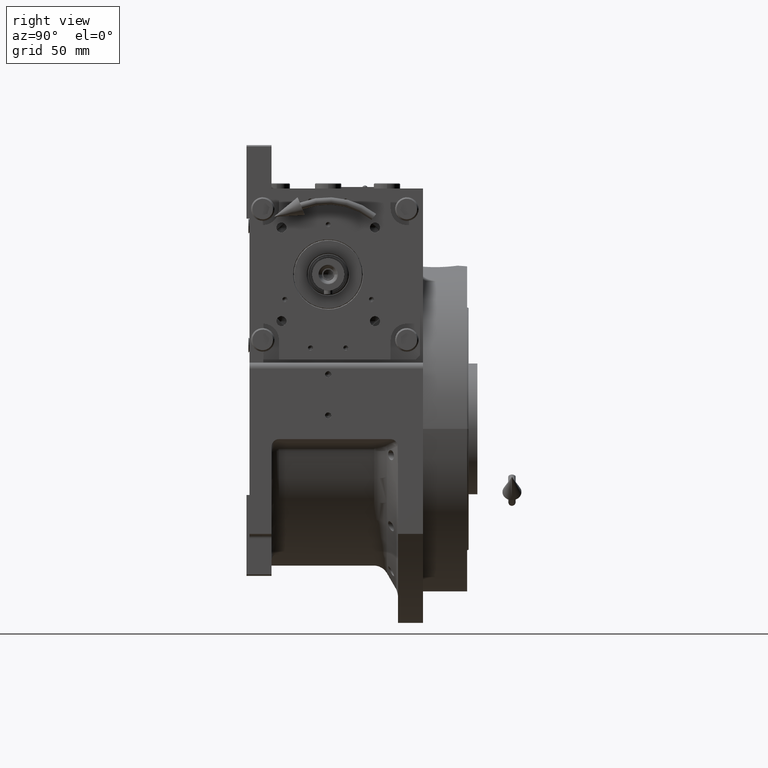
[diagram: clean part render]
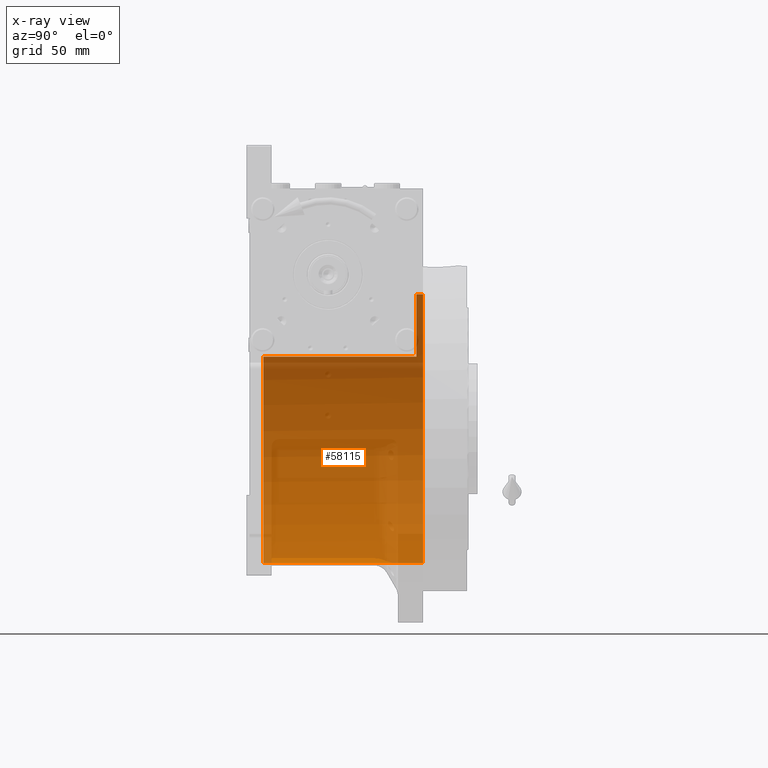
[diagram: x-ray — body ghosted, one internal face saturated and labeled with its STEP entity id]
A machine part, right view, then the same camera in x-ray: the body is ghosted and one INTERNAL B-rep face — a face not visible from any outside direction — is saturated and labeled: STEP entity #58115.
In plain terms, the highlighted cylindrical surface (partial cylindrical patch) has radius 91.5 mm, axis along (0, -1, 0).
Its self-contained STEP definition (entity closure, byte-faithful):
#2384 = EDGE_CURVE ( 'NONE', #63881, #28739, #28680, .T. ) ;
#2875 = ORIENTED_EDGE ( 'NONE', *, *, #45531, .T. ) ;
#2896 = CARTESIAN_POINT ( 'NONE',  ( 0.000000000000000000, 64.50000000000000000, 0.000000000000000000 ) ) ;
#3789 = AXIS2_PLACEMENT_3D ( 'NONE', #59984, #65494, #43823 ) ;
#4332 = CARTESIAN_POINT ( 'NONE',  ( 0.000000000000000000, 69.00000000000004263, -91.50000000000000000 ) ) ;
#5609 = CARTESIAN_POINT ( 'NONE',  ( 0.000000000000000000, 69.00000000000004263, 0.000000000000000000 ) ) ;
#5989 = VECTOR ( 'NONE', #36274, 1000.000000000000000 ) ;
#7167 = EDGE_CURVE ( 'NONE', #25713, #52311, #40135, .T. ) ;
#10477 = AXIS2_PLACEMENT_3D ( 'NONE', #2896, #23886, #22853 ) ;
#15321 = LINE ( 'NONE', #4332, #5989 ) ;
#16166 = VECTOR ( 'NONE', #65486, 1000.000000000000000 ) ;
#16595 = ORIENTED_EDGE ( 'NONE', *, *, #38232, .F. ) ;
#18717 = CARTESIAN_POINT ( 'NONE',  ( 0.000000000000000000, -44.00000000000000000, -91.50000000000000000 ) ) ;
#19495 = CARTESIAN_POINT ( 'NONE',  ( 0.000000000000000000, 60.00000000000000000, 0.000000000000000000 ) ) ;
#19767 = CARTESIAN_POINT ( 'NONE',  ( 1.120551821219827868E-14, 60.00000000000000000, 91.50000000000000000 ) ) ;
#19831 = DIRECTION ( 'NONE',  ( 0.000000000000000000, -1.000000000000000000, 0.000000000000000000 ) ) ;
#22853 = DIRECTION ( 'NONE',  ( 0.000000000000000000, 0.000000000000000000, 1.000000000000000000 ) ) ;
#23786 = VERTEX_POINT ( 'NONE', #19767 ) ;
#23886 = DIRECTION ( 'NONE',  ( -0.000000000000000000, -1.000000000000000000, -0.000000000000000000 ) ) ;
#25002 = DIRECTION ( 'NONE',  ( 1.776356839400250465E-15, 0.000000000000000000, -1.000000000000000000 ) ) ;
#25713 = VERTEX_POINT ( 'NONE', #56760 ) ;
#25927 = ORIENTED_EDGE ( 'NONE', *, *, #28025, .F. ) ;
#26095 = ORIENTED_EDGE ( 'NONE', *, *, #7167, .F. ) ;
#26150 = AXIS2_PLACEMENT_3D ( 'NONE', #5609, #63048, #31384 ) ;
#26594 = FACE_OUTER_BOUND ( 'NONE', #38417, .T. ) ;
#26919 = CARTESIAN_POINT ( 'NONE',  ( -77.27386362800814368, 60.00000000000000000, 48.99999999999998579 ) ) ;
#27148 = EDGE_CURVE ( 'NONE', #35605, #63881, #34491, .T. ) ;
#28025 = EDGE_CURVE ( 'NONE', #52311, #35605, #15321, .T. ) ;
#28680 = LINE ( 'NONE', #55170, #16166 ) ;
#28739 = VERTEX_POINT ( 'NONE', #26919 ) ;
#30308 = VECTOR ( 'NONE', #19831, 1000.000000000000000 ) ;
#31384 = DIRECTION ( 'NONE',  ( 0.000000000000000000, 0.000000000000000000, -1.000000000000000000 ) ) ;
#31833 = LINE ( 'NONE', #56980, #30308 ) ;
#34491 = CIRCLE ( 'NONE', #3789, 91.50000000000000000 ) ;
#35605 = VERTEX_POINT ( 'NONE', #18717 ) ;
#36274 = DIRECTION ( 'NONE',  ( 0.000000000000000000, -1.000000000000000000, 0.000000000000000000 ) ) ;
#37888 = CYLINDRICAL_SURFACE ( 'NONE', #26150, 91.50000000000000000 ) ;
#38232 = EDGE_CURVE ( 'NONE', #28739, #23786, #40744, .T. ) ;
#38417 = EDGE_LOOP ( 'NONE', ( #26095, #2875, #16595, #47773, #61528, #25927 ) ) ;
#38484 = CARTESIAN_POINT ( 'NONE',  ( 0.000000000000000000, 64.50000000000000000, -91.50000000000000000 ) ) ;
#40135 = CIRCLE ( 'NONE', #10477, 91.50000000000000000 ) ;
#40744 = CIRCLE ( 'NONE', #49556, 91.50000000000000000 ) ;
#41701 = CARTESIAN_POINT ( 'NONE',  ( -77.27386362800814368, -44.00000000000000000, 49.00000000000000000 ) ) ;
#43823 = DIRECTION ( 'NONE',  ( 0.000000000000000000, 0.000000000000000000, 1.000000000000000000 ) ) ;
#45531 = EDGE_CURVE ( 'NONE', #25713, #23786, #31833, .T. ) ;
#47773 = ORIENTED_EDGE ( 'NONE', *, *, #2384, .F. ) ;
#49556 = AXIS2_PLACEMENT_3D ( 'NONE', #19495, #56296, #25002 ) ;
#52311 = VERTEX_POINT ( 'NONE', #38484 ) ;
#55170 = CARTESIAN_POINT ( 'NONE',  ( -77.27386362800812947, 69.00000000000004263, 48.99999999999998579 ) ) ;
#56296 = DIRECTION ( 'NONE',  ( 0.000000000000000000, 1.000000000000000000, 0.000000000000000000 ) ) ;
#56760 = CARTESIAN_POINT ( 'NONE',  ( 1.120551821219827868E-14, 64.50000000000000000, 91.50000000000000000 ) ) ;
#56980 = CARTESIAN_POINT ( 'NONE',  ( 1.120551821219827868E-14, 69.00000000000004263, 91.50000000000000000 ) ) ;
#58115 = ADVANCED_FACE ( 'NONE', ( #26594 ), #37888, .F. ) ;
#59984 = CARTESIAN_POINT ( 'NONE',  ( 0.000000000000000000, -44.00000000000000000, 0.000000000000000000 ) ) ;
#61528 = ORIENTED_EDGE ( 'NONE', *, *, #27148, .F. ) ;
#63048 = DIRECTION ( 'NONE',  ( 0.000000000000000000, -1.000000000000000000, 0.000000000000000000 ) ) ;
#63881 = VERTEX_POINT ( 'NONE', #41701 ) ;
#65486 = DIRECTION ( 'NONE',  ( -0.000000000000000000, 1.000000000000000000, -0.000000000000000000 ) ) ;
#65494 = DIRECTION ( 'NONE',  ( 0.000000000000000000, 1.000000000000000000, 0.000000000000000000 ) ) ;